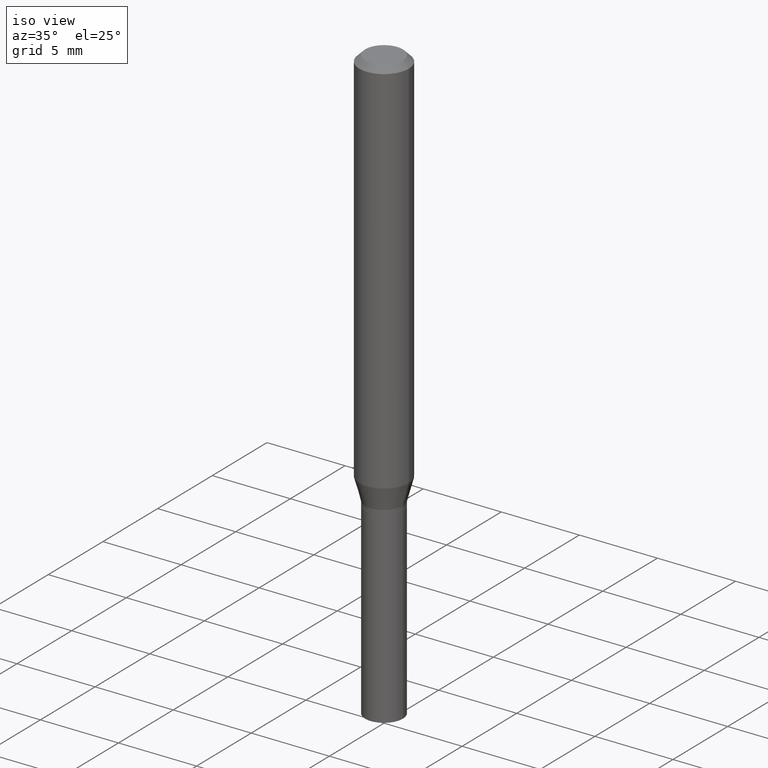
[diagram: clean part render]
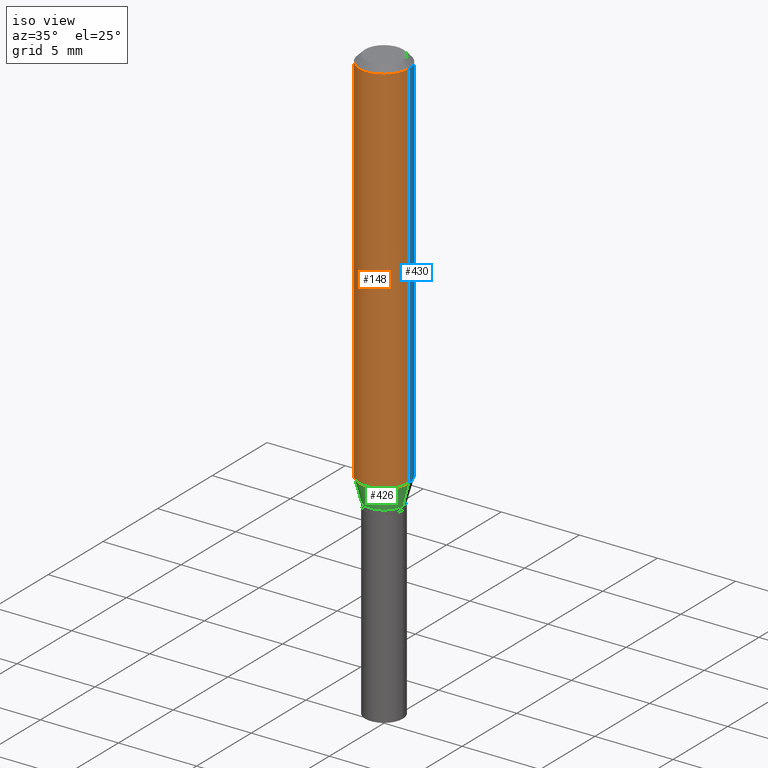
[diagram: same view with three faces highlighted in distinct colors, each labeled with its STEP entity id]
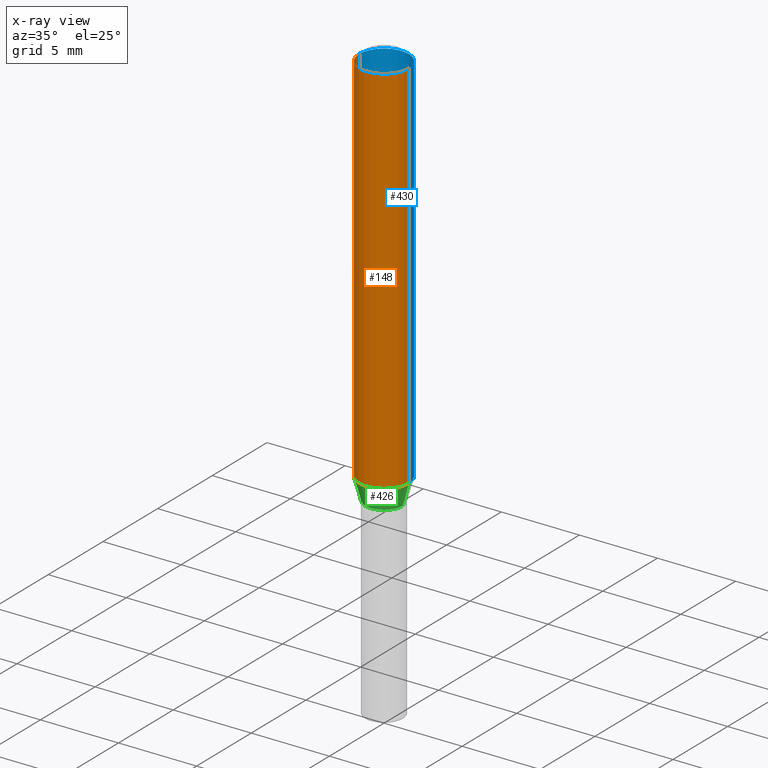
[diagram: x-ray of the same camera — body ghosted, the three highlighted faces saturated]
A machine part, iso view with three faces highlighted in distinct colors.
The next image is the same camera in x-ray (body ghosted, the three faces saturated) — at least one of them is partly hidden behind the body in this view.
Their STEP definitions:

[orange] entity #148 — the highlighted cylindrical surface (edge-blend (fillet) strip) has radius 1.5875 mm, axis along (-0, 0, 1).
#5 = CARTESIAN_POINT ( 'NONE',  ( -0.06250000000000000000, 4.440892098500626162E-16, -3.074334431409316114E-30 ) ) ;
#10 = ORIENTED_EDGE ( 'NONE', *, *, #407, .F. ) ;
#11 = VERTEX_POINT ( 'NONE', #180 ) ;
#20 = FACE_OUTER_BOUND ( 'NONE', #121, .T. ) ;
#29 = VECTOR ( 'NONE', #405, 39.37007874015748143 ) ;
#40 = CIRCLE ( 'NONE', #411, 0.06250000000000000000 ) ;
#54 = CARTESIAN_POINT ( 'NONE',  ( 2.345251630782798448E-29, -3.348397772672175740E-15, -0.9590192378864672573 ) ) ;
#85 = VERTEX_POINT ( 'NONE', #442 ) ;
#93 = CARTESIAN_POINT ( 'NONE',  ( -0.06250000000000000000, -1.256295786527348794E-15, -0.01499999999999999944 ) ) ;
#95 = CARTESIAN_POINT ( 'NONE',  ( 0.000000000000000000, 0.000000000000000000, 0.000000000000000000 ) ) ;
#100 = AXIS2_PLACEMENT_3D ( 'NONE', #54, #154, #449 ) ;
#102 = CARTESIAN_POINT ( 'NONE',  ( 0.06250000000000000000, -4.364351673553916694E-16, 3.047610484872459871E-30 ) ) ;
#106 = DIRECTION ( 'NONE',  ( 1.000000000000000000, -6.982962677686266711E-15, 0.000000000000000000 ) ) ;
#114 = VERTEX_POINT ( 'NONE', #93 ) ;
#121 = EDGE_LOOP ( 'NONE', ( #10, #200, #152, #462 ) ) ;
#144 = CARTESIAN_POINT ( 'NONE',  ( -0.06250000000000000000, -2.904308562822113124E-15, -0.9590192378864672573 ) ) ;
#148 = ADVANCED_FACE ( 'NONE', ( #20 ), #305, .T. ) ;
#152 = ORIENTED_EDGE ( 'NONE', *, *, #381, .T. ) ;
#154 = DIRECTION ( 'NONE',  ( -2.445468806185136597E-29, 3.491481338843145583E-15, 1.000000000000000000 ) ) ;
#180 = CARTESIAN_POINT ( 'NONE',  ( 0.06250000000000000000, -3.784832940027567410E-15, -0.9590192378864672573 ) ) ;
#200 = ORIENTED_EDGE ( 'NONE', *, *, #289, .T. ) ;
#214 = VECTOR ( 'NONE', #319, 39.37007874015748143 ) ;
#282 = DIRECTION ( 'NONE',  ( -2.445468806185136597E-29, 3.491481338843145583E-15, 1.000000000000000000 ) ) ;
#285 = LINE ( 'NONE', #102, #29 ) ;
#289 = EDGE_CURVE ( 'NONE', #406, #11, #294, .T. ) ;
#294 = CIRCLE ( 'NONE', #100, 0.06250000000000000000 ) ;
#305 = CYLINDRICAL_SURFACE ( 'NONE', #324, 0.06250000000000000000 ) ;
#319 = DIRECTION ( 'NONE',  ( -2.445468806185136877E-29, 3.491481338843145188E-15, 1.000000000000000000 ) ) ;
#322 = LINE ( 'NONE', #5, #214 ) ;
#324 = AXIS2_PLACEMENT_3D ( 'NONE', #95, #443, #380 ) ;
#380 = DIRECTION ( 'NONE',  ( 1.000000000000000000, -6.982962677686266711E-15, 4.876176775795935793E-29 ) ) ;
#381 = EDGE_CURVE ( 'NONE', #11, #85, #285, .T. ) ;
#405 = DIRECTION ( 'NONE',  ( -2.445468806185136877E-29, 3.491481338843145188E-15, 1.000000000000000000 ) ) ;
#406 = VERTEX_POINT ( 'NONE', #144 ) ;
#407 = EDGE_CURVE ( 'NONE', #406, #114, #322, .T. ) ;
#411 = AXIS2_PLACEMENT_3D ( 'NONE', #464, #282, #106 ) ;
#438 = EDGE_CURVE ( 'NONE', #114, #85, #40, .T. ) ;
#442 = CARTESIAN_POINT ( 'NONE',  ( 0.06250000000000000000, -4.888073874380388472E-16, -0.01499999999999999944 ) ) ;
#443 = DIRECTION ( 'NONE',  ( -2.445468806185136597E-29, 3.491481338843145583E-15, 1.000000000000000000 ) ) ;
#449 = DIRECTION ( 'NONE',  ( 1.000000000000000000, -6.982962677686270655E-15, 0.000000000000000000 ) ) ;
#462 = ORIENTED_EDGE ( 'NONE', *, *, #438, .F. ) ;
#464 = CARTESIAN_POINT ( 'NONE',  ( 3.668203209277705088E-31, -5.237222008264718399E-17, -0.01499999999999999944 ) ) ;

[blue] entity #430 — the highlighted cylindrical surface (edge-blend (fillet) strip) has radius 1.5875 mm, axis along (-0, 0, 1).
#5 = CARTESIAN_POINT ( 'NONE',  ( -0.06250000000000000000, 4.440892098500626162E-16, -3.074334431409316114E-30 ) ) ;
#11 = VERTEX_POINT ( 'NONE', #180 ) ;
#29 = VECTOR ( 'NONE', #405, 39.37007874015748143 ) ;
#42 = DIRECTION ( 'NONE',  ( 1.000000000000000000, -6.982962677686270655E-15, 0.000000000000000000 ) ) ;
#72 = EDGE_CURVE ( 'NONE', #85, #114, #435, .T. ) ;
#79 = FACE_OUTER_BOUND ( 'NONE', #107, .T. ) ;
#85 = VERTEX_POINT ( 'NONE', #442 ) ;
#89 = CIRCLE ( 'NONE', #423, 0.06250000000000000000 ) ;
#93 = CARTESIAN_POINT ( 'NONE',  ( -0.06250000000000000000, -1.256295786527348794E-15, -0.01499999999999999944 ) ) ;
#102 = CARTESIAN_POINT ( 'NONE',  ( 0.06250000000000000000, -4.364351673553916694E-16, 3.047610484872459871E-30 ) ) ;
#107 = EDGE_LOOP ( 'NONE', ( #391, #326, #315, #190 ) ) ;
#114 = VERTEX_POINT ( 'NONE', #93 ) ;
#142 = AXIS2_PLACEMENT_3D ( 'NONE', #162, #165, #440 ) ;
#144 = CARTESIAN_POINT ( 'NONE',  ( -0.06250000000000000000, -2.904308562822113124E-15, -0.9590192378864672573 ) ) ;
#162 = CARTESIAN_POINT ( 'NONE',  ( 3.668203209277705088E-31, -5.237222008264718399E-17, -0.01499999999999999944 ) ) ;
#165 = DIRECTION ( 'NONE',  ( -2.445468806185136597E-29, 3.491481338843145583E-15, 1.000000000000000000 ) ) ;
#180 = CARTESIAN_POINT ( 'NONE',  ( 0.06250000000000000000, -3.784832940027567410E-15, -0.9590192378864672573 ) ) ;
#190 = ORIENTED_EDGE ( 'NONE', *, *, #381, .F. ) ;
#214 = VECTOR ( 'NONE', #319, 39.37007874015748143 ) ;
#215 = CARTESIAN_POINT ( 'NONE',  ( 2.345251630782798448E-29, -3.348397772672175740E-15, -0.9590192378864672573 ) ) ;
#245 = AXIS2_PLACEMENT_3D ( 'NONE', #436, #360, #288 ) ;
#247 = DIRECTION ( 'NONE',  ( -2.445468806185136597E-29, 3.491481338843145583E-15, 1.000000000000000000 ) ) ;
#251 = CYLINDRICAL_SURFACE ( 'NONE', #245, 0.06250000000000000000 ) ;
#285 = LINE ( 'NONE', #102, #29 ) ;
#288 = DIRECTION ( 'NONE',  ( 1.000000000000000000, -6.982962677686266711E-15, 4.876176775795935793E-29 ) ) ;
#315 = ORIENTED_EDGE ( 'NONE', *, *, #72, .F. ) ;
#319 = DIRECTION ( 'NONE',  ( -2.445468806185136877E-29, 3.491481338843145188E-15, 1.000000000000000000 ) ) ;
#322 = LINE ( 'NONE', #5, #214 ) ;
#326 = ORIENTED_EDGE ( 'NONE', *, *, #407, .T. ) ;
#360 = DIRECTION ( 'NONE',  ( -2.445468806185136597E-29, 3.491481338843145583E-15, 1.000000000000000000 ) ) ;
#379 = EDGE_CURVE ( 'NONE', #11, #406, #89, .T. ) ;
#381 = EDGE_CURVE ( 'NONE', #11, #85, #285, .T. ) ;
#391 = ORIENTED_EDGE ( 'NONE', *, *, #379, .T. ) ;
#405 = DIRECTION ( 'NONE',  ( -2.445468806185136877E-29, 3.491481338843145188E-15, 1.000000000000000000 ) ) ;
#406 = VERTEX_POINT ( 'NONE', #144 ) ;
#407 = EDGE_CURVE ( 'NONE', #406, #114, #322, .T. ) ;
#423 = AXIS2_PLACEMENT_3D ( 'NONE', #215, #247, #42 ) ;
#430 = ADVANCED_FACE ( 'NONE', ( #79 ), #251, .T. ) ;
#435 = CIRCLE ( 'NONE', #142, 0.06250000000000000000 ) ;
#436 = CARTESIAN_POINT ( 'NONE',  ( 0.000000000000000000, 0.000000000000000000, 0.000000000000000000 ) ) ;
#440 = DIRECTION ( 'NONE',  ( 1.000000000000000000, -6.982962677686266711E-15, 0.000000000000000000 ) ) ;
#442 = CARTESIAN_POINT ( 'NONE',  ( 0.06250000000000000000, -4.888073874380388472E-16, -0.01499999999999999944 ) ) ;

[green] entity #426 — the highlighted conical surface has half-angle 15 deg.
#11 = VERTEX_POINT ( 'NONE', #180 ) ;
#26 = ORIENTED_EDGE ( 'NONE', *, *, #276, .T. ) ;
#28 = DIRECTION ( 'NONE',  ( -2.445468806185136597E-29, 3.491481338843145583E-15, 1.000000000000000000 ) ) ;
#32 = DIRECTION ( 'NONE',  ( 1.000000000000000000, -6.982962677686262766E-15, 0.000000000000000000 ) ) ;
#35 = CARTESIAN_POINT ( 'NONE',  ( -0.04750000000000006301, -3.206345759439744774E-15, -1.014999999999999902 ) ) ;
#54 = CARTESIAN_POINT ( 'NONE',  ( 2.345251630782798448E-29, -3.348397772672175740E-15, -0.9590192378864672573 ) ) ;
#82 = CARTESIAN_POINT ( 'NONE',  ( 2.482150838277913354E-29, -3.543853558925792662E-15, -1.014999999999999902 ) ) ;
#100 = AXIS2_PLACEMENT_3D ( 'NONE', #54, #154, #449 ) ;
#144 = CARTESIAN_POINT ( 'NONE',  ( -0.06250000000000000000, -2.904308562822113124E-15, -0.9590192378864672573 ) ) ;
#154 = DIRECTION ( 'NONE',  ( -2.445468806185136597E-29, 3.491481338843145583E-15, 1.000000000000000000 ) ) ;
#155 = CIRCLE ( 'NONE', #188, 0.04750000000000006301 ) ;
#170 = VECTOR ( 'NONE', #287, 39.37007874015748143 ) ;
#180 = CARTESIAN_POINT ( 'NONE',  ( 0.06250000000000000000, -3.784832940027567410E-15, -0.9590192378864672573 ) ) ;
#188 = AXIS2_PLACEMENT_3D ( 'NONE', #373, #202, #278 ) ;
#195 = ORIENTED_EDGE ( 'NONE', *, *, #289, .F. ) ;
#202 = DIRECTION ( 'NONE',  ( -2.445468806185136597E-29, 3.491481338843145583E-15, 1.000000000000000000 ) ) ;
#211 = VECTOR ( 'NONE', #394, 39.37007874015748143 ) ;
#224 = LINE ( 'NONE', #400, #211 ) ;
#239 = CONICAL_SURFACE ( 'NONE', #351, 0.04750000000000006301, 0.2617993877991502405 ) ;
#254 = LINE ( 'NONE', #35, #170 ) ;
#266 = CARTESIAN_POINT ( 'NONE',  ( -0.04750000000000006301, -3.055327161130928752E-15, -1.014999999999999902 ) ) ;
#276 = EDGE_CURVE ( 'NONE', #286, #281, #155, .T. ) ;
#278 = DIRECTION ( 'NONE',  ( 1.000000000000000000, -6.982962677686262766E-15, 0.000000000000000000 ) ) ;
#281 = VERTEX_POINT ( 'NONE', #340 ) ;
#286 = VERTEX_POINT ( 'NONE', #266 ) ;
#287 = DIRECTION ( 'NONE',  ( -0.2588190451025215166, 5.211531920934551042E-15, 0.9659258262890679791 ) ) ;
#289 = EDGE_CURVE ( 'NONE', #406, #11, #294, .T. ) ;
#291 = FACE_OUTER_BOUND ( 'NONE', #368, .T. ) ;
#294 = CIRCLE ( 'NONE', #100, 0.06250000000000000000 ) ;
#340 = CARTESIAN_POINT ( 'NONE',  ( 0.04750000000000006301, -3.875544286115890173E-15, -1.014999999999999902 ) ) ;
#351 = AXIS2_PLACEMENT_3D ( 'NONE', #82, #28, #32 ) ;
#368 = EDGE_LOOP ( 'NONE', ( #395, #26, #434, #195 ) ) ;
#373 = CARTESIAN_POINT ( 'NONE',  ( 2.482150838277913354E-29, -3.543853558925792662E-15, -1.014999999999999902 ) ) ;
#386 = EDGE_CURVE ( 'NONE', #286, #406, #254, .T. ) ;
#394 = DIRECTION ( 'NONE',  ( 0.2588190451025215166, 1.565188264969620784E-15, 0.9659258262890679791 ) ) ;
#395 = ORIENTED_EDGE ( 'NONE', *, *, #386, .F. ) ;
#400 = CARTESIAN_POINT ( 'NONE',  ( 0.04750000000000006301, -3.875544286115890173E-15, -1.014999999999999902 ) ) ;
#406 = VERTEX_POINT ( 'NONE', #144 ) ;
#426 = ADVANCED_FACE ( 'NONE', ( #291 ), #239, .T. ) ;
#434 = ORIENTED_EDGE ( 'NONE', *, *, #465, .T. ) ;
#449 = DIRECTION ( 'NONE',  ( 1.000000000000000000, -6.982962677686270655E-15, 0.000000000000000000 ) ) ;
#465 = EDGE_CURVE ( 'NONE', #281, #11, #224, .T. ) ;